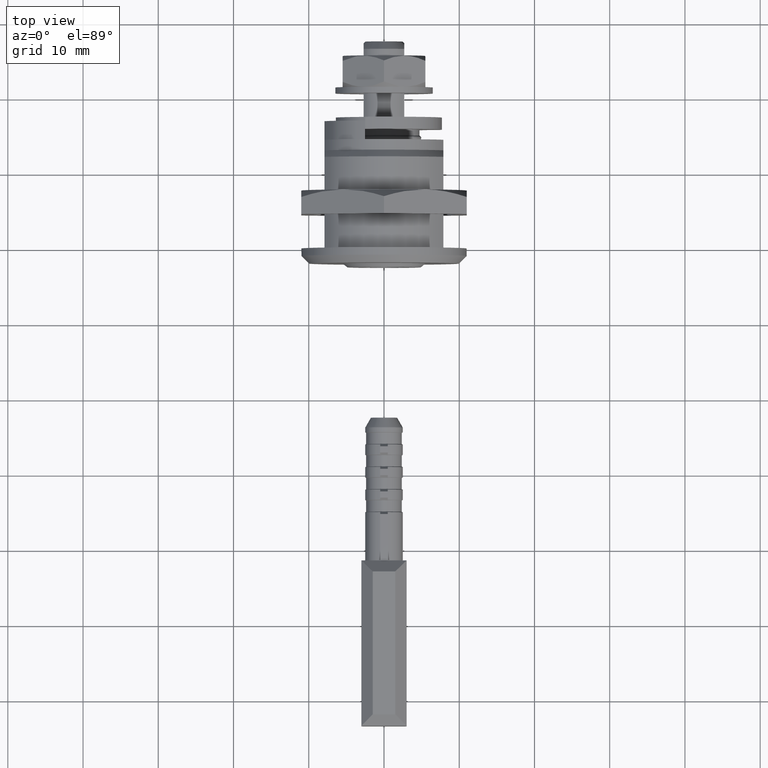
[diagram: clean part render]
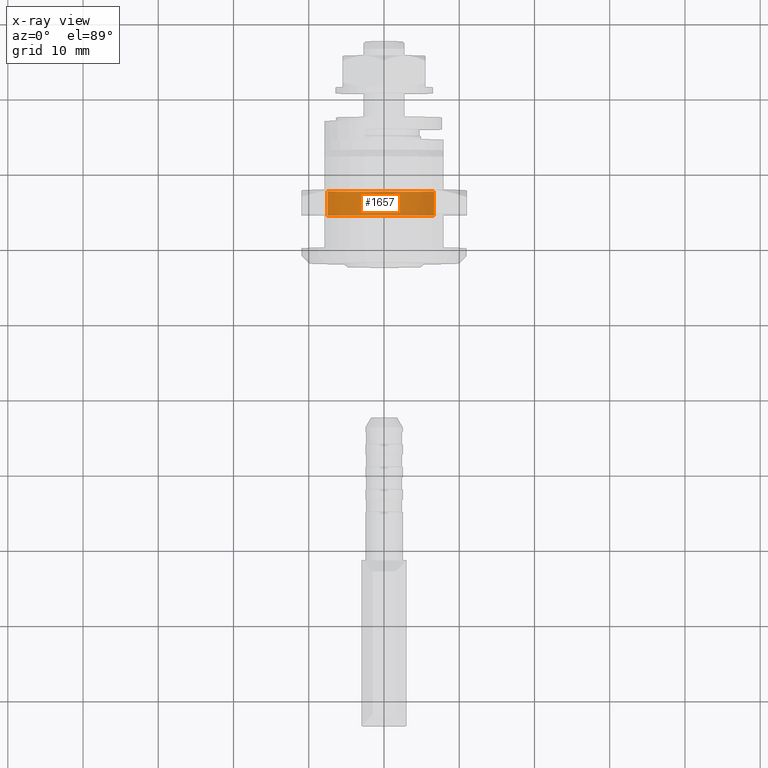
[diagram: x-ray — body ghosted, one internal face saturated and labeled with its STEP entity id]
A machine part, top view, then the same camera in x-ray: the body is ghosted and one INTERNAL B-rep face — a face not visible from any outside direction — is saturated and labeled: STEP entity #1657.
In plain terms, the highlighted face is a freeform B-spline surface patch.
Its self-contained STEP definition (entity closure, byte-faithful):
#1494=CARTESIAN_POINT('',(7.699999999999989,7.499398040138685,-5.831726076859733));
#1495=VERTEX_POINT('',#1494);
#1528=CARTESIAN_POINT('',(7.699999999999999,-6.658637704017448,-6.775879568486813));
#1529=VERTEX_POINT('',#1528);
#1543=CARTESIAN_POINT('',(4.500000000000202,-6.658637823309419,-6.775879451258937));
#1544=VERTEX_POINT('',#1543);
#1545=CARTESIAN_POINT('',(4.500000000000202,-6.658637823309419,-6.775879451258937));
#1546=CARTESIAN_POINT('',(7.699999999999999,-6.658637704017448,-6.775879568486813));
#1547=QUASI_UNIFORM_CURVE('',1,(#1545,#1546),.UNSPECIFIED.,.F.,.U.);
#1548=EDGE_CURVE('',#1544,#1529,#1547,.T.);
#1567=CARTESIAN_POINT('',(4.500000000000171,7.499397178830899,-5.831727184472905));
#1568=VERTEX_POINT('',#1567);
#1584=CARTESIAN_POINT('',(4.500000000000171,7.499397178830899,-5.831727184472905));
#1585=CARTESIAN_POINT('',(7.699999999999989,7.499398040138685,-5.831726076859733));
#1586=QUASI_UNIFORM_CURVE('',1,(#1584,#1585),.UNSPECIFIED.,.F.,.U.);
#1587=EDGE_CURVE('',#1568,#1495,#1586,.T.);
#1592=CARTESIAN_POINT('',(4.420000000000173,-6.658638010848581,-6.775879266964722));
#1593=CARTESIAN_POINT('',(4.420000000000174,0.117241256116141,-13.434517277813304));
#1594=CARTESIAN_POINT('',(4.420000000000173,6.775879266964722,-6.658638010848581));
#1595=CARTESIAN_POINT('',(4.420000000000174,7.161586394405765,-6.266139586442534));
#1596=CARTESIAN_POINT('',(4.420000000000174,7.499394245169180,-5.831730957059262));
#1597=CARTESIAN_POINT('',(7.781999999999997,-6.658638010848581,-6.775879266964722));
#1598=CARTESIAN_POINT('',(7.781999999999997,0.117241256116141,-13.434517277813304));
#1599=CARTESIAN_POINT('',(7.781999999999997,6.775879266964722,-6.658638010848581));
#1600=CARTESIAN_POINT('',(7.781999999999997,7.161586394405765,-6.266139586442534));
#1601=CARTESIAN_POINT('',(7.781999999999997,7.499394245169180,-5.831730957059262));
#1609=(BOUNDED_SURFACE()B_SPLINE_SURFACE(2,1,((#1592,#1597),(#1593,#1598),(#1594,#1599),(#1595,#1600),(#1596,#1601)),.UNSPECIFIED.,.F.,.F.,.U.)B_SPLINE_SURFACE_WITH_KNOTS((3,2,3),(2,2),(0.0,15.740115370177611,16.999324599791819),(0.0,3.361999999999824),.UNSPECIFIED.)GEOMETRIC_REPRESENTATION_ITEM()RATIONAL_B_SPLINE_SURFACE(((1.0,1.0),(0.707106781186548,0.707106781186548),(1.0,1.0),(0.976568542494924,0.976568542494924),(0.956886118190660,0.956886118190660)))REPRESENTATION_ITEM('')SURFACE());
#1610=CARTESIAN_POINT('',(7.700000000000000,-6.658637704017448,-6.775879568486813));
#1611=CARTESIAN_POINT('',(7.700000000000000,-3.886552111375062,-9.500000000000000));
#1612=CARTESIAN_POINT('',(7.700000000000000,0.0,-9.500000000000000));
#1613=CARTESIAN_POINT('',(7.700000000000001,4.646853265194733,-9.500000000000002));
#1614=CARTESIAN_POINT('',(7.699999999999989,7.499398040138685,-5.831726076859733));
#1622=(BOUNDED_CURVE()B_SPLINE_CURVE(2,(#1610,#1611,#1612,#1613,#1614),.UNSPECIFIED.,.F.,.U.)B_SPLINE_CURVE_WITH_KNOTS((3,2,3),(0.626316771256660,0.750000000000000,0.893802273702833),.UNSPECIFIED.)CURVE()GEOMETRIC_REPRESENTATION_ITEM()RATIONAL_B_SPLINE_CURVE((0.853569641588808,0.855096084080491,1.0,0.831525156729936,0.856866837651582))REPRESENTATION_ITEM(''));
#1623=EDGE_CURVE('',#1529,#1495,#1622,.T.);
#1624=ORIENTED_EDGE('',*,*,#1623,.T.);
#1625=ORIENTED_EDGE('',*,*,#1587,.F.);
#1626=CARTESIAN_POINT('',(4.500000000000170,0.0,-9.500000000000000));
#1627=VERTEX_POINT('',#1626);
#1628=CARTESIAN_POINT('',(4.500000000000171,7.499397178830900,-5.831727184472905));
#1629=CARTESIAN_POINT('',(4.500000000000171,4.646852395798645,-9.500000000000000));
#1630=CARTESIAN_POINT('',(4.500000000000170,0.0,-9.500000000000000));
#1638=(BOUNDED_CURVE()B_SPLINE_CURVE(2,(#1628,#1629,#1630),.UNSPECIFIED.,.F.,.U.)B_SPLINE_CURVE_WITH_KNOTS((3,3),(0.356197748668913,0.500000000000000),.UNSPECIFIED.)CURVE()GEOMETRIC_REPRESENTATION_ITEM()RATIONAL_B_SPLINE_CURVE((0.856866829766626,0.831525182940067,1.0))REPRESENTATION_ITEM(''));
#1639=EDGE_CURVE('',#1568,#1627,#1638,.T.);
#1640=ORIENTED_EDGE('',*,*,#1639,.T.);
#1641=CARTESIAN_POINT('',(4.500000000000170,0.0,-9.500000000000000));
#1642=CARTESIAN_POINT('',(4.500000000000170,-3.886552306619294,-9.500000000000000));
#1643=CARTESIAN_POINT('',(4.500000000000203,-6.658637823309419,-6.775879451258937));
#1651=(BOUNDED_CURVE()B_SPLINE_CURVE(2,(#1641,#1642,#1643),.UNSPECIFIED.,.F.,.U.)B_SPLINE_CURVE_WITH_KNOTS((3,3),(0.500000000000000,0.623683234056335),.UNSPECIFIED.)CURVE()GEOMETRIC_REPRESENTATION_ITEM()RATIONAL_B_SPLINE_CURVE((1.0,0.855096077855929,0.853569641457667))REPRESENTATION_ITEM(''));
#1652=EDGE_CURVE('',#1627,#1544,#1651,.T.);
#1653=ORIENTED_EDGE('',*,*,#1652,.T.);
#1654=ORIENTED_EDGE('',*,*,#1548,.T.);
#1655=EDGE_LOOP('',(#1624,#1625,#1640,#1653,#1654));
#1656=FACE_OUTER_BOUND('',#1655,.T.);
#1657=ADVANCED_FACE('',(#1656),#1609,.F.);